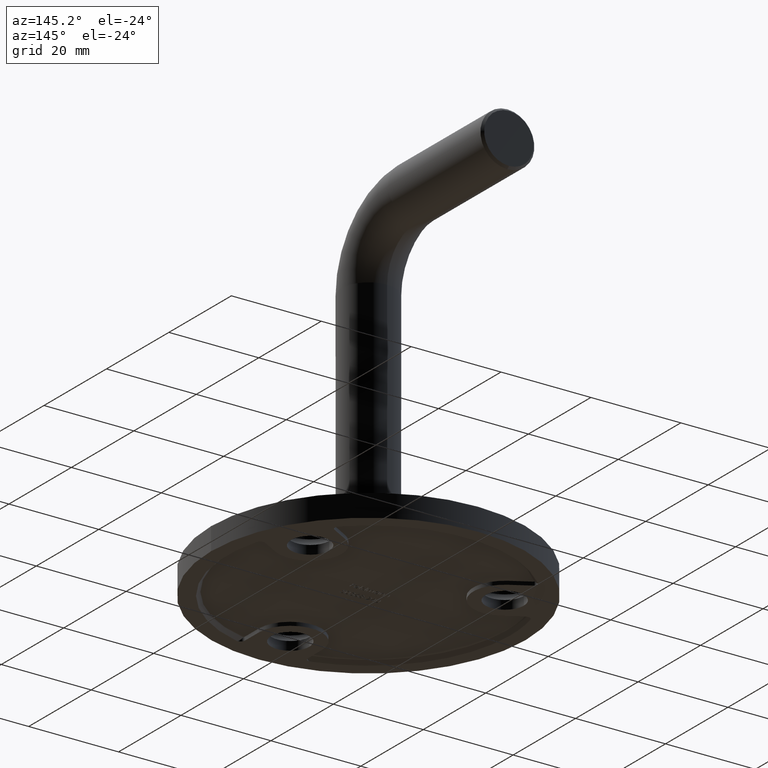
[diagram: clean part render]
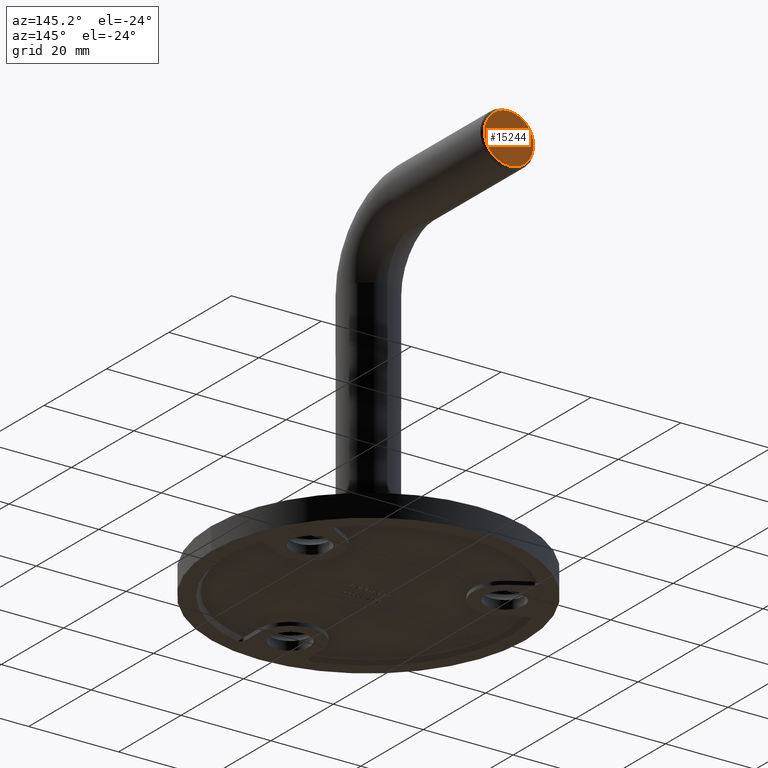
[diagram: same view with one face highlighted and labeled with its STEP entity id]
A machine part, auxiliary view. The second image highlights one B-rep face of the part: STEP entity #15244.
In plain terms, the highlighted planar face has unit normal (0, -1, -0).
Its self-contained STEP definition (entity closure, byte-faithful):
#40 = CIRCLE ( 'NONE', #7744, 5.500000000000018652 ) ;
#464 = AXIS2_PLACEMENT_3D ( 'NONE', #735, #11672, #9209 ) ;
#735 = CARTESIAN_POINT ( 'NONE',  ( 0.000000000000000000, 44.99999999999997868, 75.00000000000000000 ) ) ;
#1811 = FACE_OUTER_BOUND ( 'NONE', #5592, .T. ) ;
#3491 = AXIS2_PLACEMENT_3D ( 'NONE', #12179, #14578, #15672 ) ;
#4128 = ORIENTED_EDGE ( 'NONE', *, *, #15001, .T. ) ;
#4143 = VERTEX_POINT ( 'NONE', #11082 ) ;
#5592 = EDGE_LOOP ( 'NONE', ( #4128, #11972 ) ) ;
#6123 = VERTEX_POINT ( 'NONE', #6260 ) ;
#6260 = CARTESIAN_POINT ( 'NONE',  ( 0.000000000000000000, 44.99999999999997868, 69.49999999999997158 ) ) ;
#7744 = AXIS2_PLACEMENT_3D ( 'NONE', #9868, #9705, #10986 ) ;
#9209 = DIRECTION ( 'NONE',  ( -1.000000000000000000, 0.000000000000000000, -0.000000000000000000 ) ) ;
#9705 = DIRECTION ( 'NONE',  ( -0.000000000000000000, 1.000000000000000000, 6.123233995736766036E-17 ) ) ;
#9868 = CARTESIAN_POINT ( 'NONE',  ( 0.000000000000000000, 44.99999999999997868, 75.00000000000000000 ) ) ;
#10194 = EDGE_CURVE ( 'NONE', #4143, #6123, #40, .T. ) ;
#10552 = CIRCLE ( 'NONE', #3491, 5.500000000000018652 ) ;
#10986 = DIRECTION ( 'NONE',  ( 0.000000000000000000, 0.000000000000000000, -1.000000000000000000 ) ) ;
#11082 = CARTESIAN_POINT ( 'NONE',  ( 7.041719095097290740E-16, 44.99999999999997868, 80.50000000000001421 ) ) ;
#11672 = DIRECTION ( 'NONE',  ( 0.000000000000000000, -1.000000000000000000, -6.123233995736766036E-17 ) ) ;
#11728 = PLANE ( 'NONE',  #464 ) ;
#11972 = ORIENTED_EDGE ( 'NONE', *, *, #10194, .T. ) ;
#12179 = CARTESIAN_POINT ( 'NONE',  ( 0.000000000000000000, 44.99999999999997868, 75.00000000000000000 ) ) ;
#14578 = DIRECTION ( 'NONE',  ( -0.000000000000000000, 1.000000000000000000, 6.123233995736766036E-17 ) ) ;
#15001 = EDGE_CURVE ( 'NONE', #6123, #4143, #10552, .T. ) ;
#15244 = ADVANCED_FACE ( 'NONE', ( #1811 ), #11728, .F. ) ;
#15672 = DIRECTION ( 'NONE',  ( 0.000000000000000000, 0.000000000000000000, -1.000000000000000000 ) ) ;